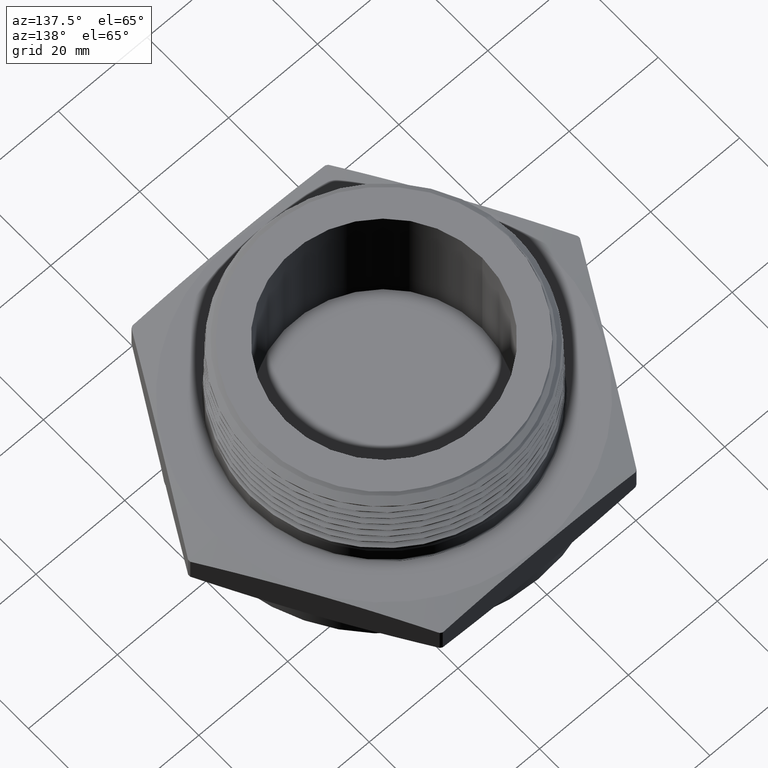
[diagram: clean part render]
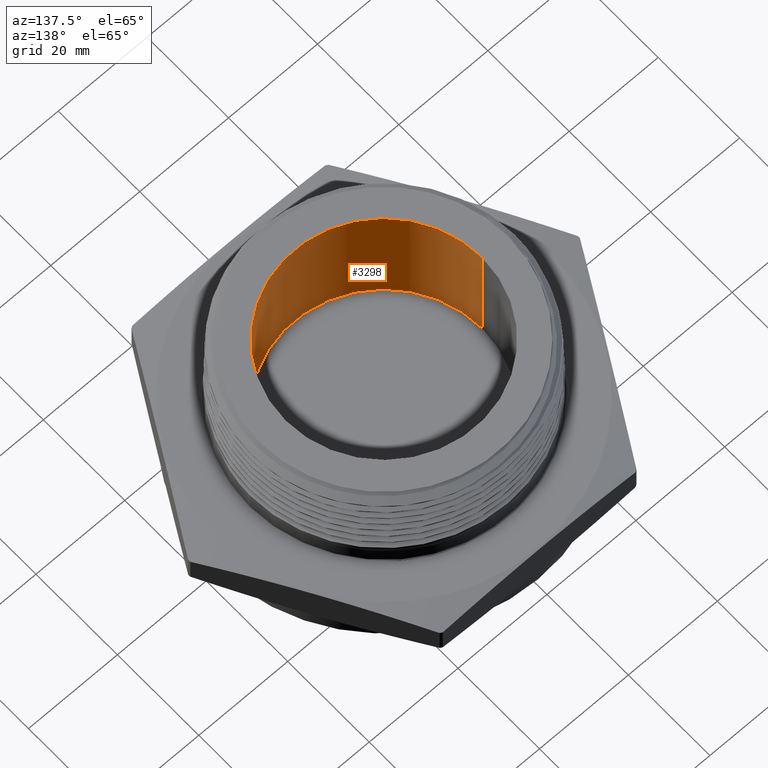
[diagram: same view with one face highlighted and labeled with its STEP entity id]
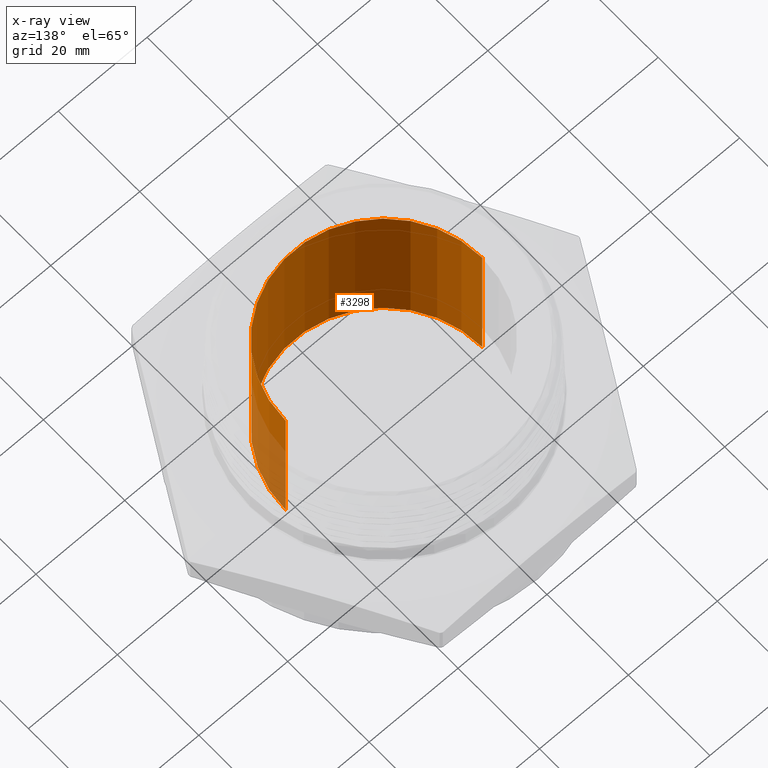
[diagram: x-ray of the same camera — body ghosted, the highlighted face saturated]
A machine part, auxiliary view. The second image highlights one B-rep face of the part: STEP entity #3298.
The next image is the same camera in x-ray: the body ghosted, the highlighted face saturated — about 9% of this face is hidden behind the body in this view.
In plain terms, the highlighted cylindrical surface (partial cylindrical patch) has radius 22.098 mm, axis along (0, 0, -1).
Its self-contained STEP definition (entity closure, byte-faithful):
#182 = VERTEX_POINT ( 'NONE', #885 ) ;
#185 = VERTEX_POINT ( 'NONE', #884 ) ;
#739 = CARTESIAN_POINT ( 'NONE',  ( 0.8700000000000000000, 1.065442715258197300E-016, -0.1799999999999999900 ) ) ;
#740 = CARTESIAN_POINT ( 'NONE',  ( -0.8700000000000000000, 0.0000000000000000000, -0.1799999999999999900 ) ) ;
#854 = VERTEX_POINT ( 'NONE', #739 ) ;
#856 = VERTEX_POINT ( 'NONE', #740 ) ;
#866 = EDGE_LOOP ( 'NONE', ( #3030, #3029, #3031, #3032 ) ) ;
#884 = CARTESIAN_POINT ( 'NONE',  ( -0.8700000000000000000, 0.0000000000000000000, 1.200000000000000400 ) ) ;
#885 = CARTESIAN_POINT ( 'NONE',  ( 0.8700000000000000000, 1.065442715258197300E-016, 1.200000000000000400 ) ) ;
#1495 = DIRECTION ( 'NONE',  ( 0.0000000000000000000, 0.0000000000000000000, -1.000000000000000000 ) ) ;
#1496 = DIRECTION ( 'NONE',  ( 0.0000000000000000000, 0.0000000000000000000, -1.000000000000000000 ) ) ;
#1497 = CARTESIAN_POINT ( 'NONE',  ( -0.8700000000000000000, 0.0000000000000000000, 3.745584412271570700 ) ) ;
#1501 = CARTESIAN_POINT ( 'NONE',  ( 0.8700000000000000000, 1.065442715258197300E-016, 3.745584412271570700 ) ) ;
#1502 = CARTESIAN_POINT ( 'NONE',  ( 4.981912577346603700E-017, 0.0000000000000000000, -0.1799999999999999900 ) ) ;
#1503 = DIRECTION ( 'NONE',  ( 0.0000000000000000000, 0.0000000000000000000, -1.000000000000000000 ) ) ;
#1504 = DIRECTION ( 'NONE',  ( -1.000000000000000000, 0.0000000000000000000, 0.0000000000000000000 ) ) ;
#1506 = CARTESIAN_POINT ( 'NONE',  ( 4.981912577346603700E-017, 0.0000000000000000000, 1.200000000000000400 ) ) ;
#1507 = DIRECTION ( 'NONE',  ( -0.0000000000000000000, -0.0000000000000000000, -1.000000000000000000 ) ) ;
#1508 = DIRECTION ( 'NONE',  ( 1.000000000000000000, 0.0000000000000000000, 0.0000000000000000000 ) ) ;
#2772 = DIRECTION ( 'NONE',  ( -1.000000000000000000, 0.0000000000000000000, 0.0000000000000000000 ) ) ;
#2773 = CARTESIAN_POINT ( 'NONE',  ( 4.981912577346603700E-017, 0.0000000000000000000, 3.745584412271570700 ) ) ;
#2774 = DIRECTION ( 'NONE',  ( 0.0000000000000000000, 0.0000000000000000000, -1.000000000000000000 ) ) ;
#2876 = FACE_OUTER_BOUND ( 'NONE', #866, .T. ) ;
#2879 = CYLINDRICAL_SURFACE ( 'NONE', #5800, 0.8700000000000000000 ) ;
#3029 = ORIENTED_EDGE ( 'NONE', *, *, #5724, .T. ) ;
#3030 = ORIENTED_EDGE ( 'NONE', *, *, #5725, .F. ) ;
#3031 = ORIENTED_EDGE ( 'NONE', *, *, #5723, .T. ) ;
#3032 = ORIENTED_EDGE ( 'NONE', *, *, #5722, .F. ) ;
#3298 = ADVANCED_FACE ( 'NONE', ( #2876 ), #2879, .F. ) ;
#5416 = AXIS2_PLACEMENT_3D ( 'NONE', #1502, #1503, #1504 ) ;
#5417 = AXIS2_PLACEMENT_3D ( 'NONE', #1506, #1507, #1508 ) ;
#5722 = EDGE_CURVE ( 'NONE', #185, #856, #7441, .T. ) ;
#5723 = EDGE_CURVE ( 'NONE', #854, #856, #7444, .T. ) ;
#5724 = EDGE_CURVE ( 'NONE', #182, #854, #7443, .T. ) ;
#5725 = EDGE_CURVE ( 'NONE', #182, #185, #7447, .T. ) ;
#5800 = AXIS2_PLACEMENT_3D ( 'NONE', #2773, #2774, #2772 ) ;
#7441 = LINE ( 'NONE', #1497, #7445 ) ;
#7443 = LINE ( 'NONE', #1501, #7448 ) ;
#7444 = CIRCLE ( 'NONE', #5416, 0.8700000000000000000 ) ;
#7445 = VECTOR ( 'NONE', #1495, 39.37007874015748100 ) ;
#7447 = CIRCLE ( 'NONE', #5417, 0.8700000000000000000 ) ;
#7448 = VECTOR ( 'NONE', #1496, 39.37007874015748100 ) ;